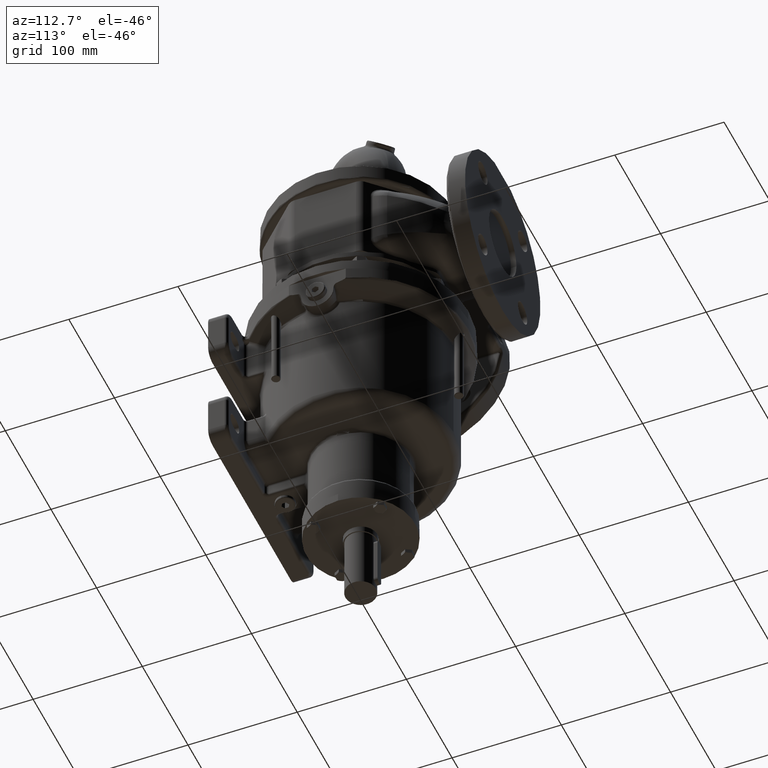
[diagram: clean part render]
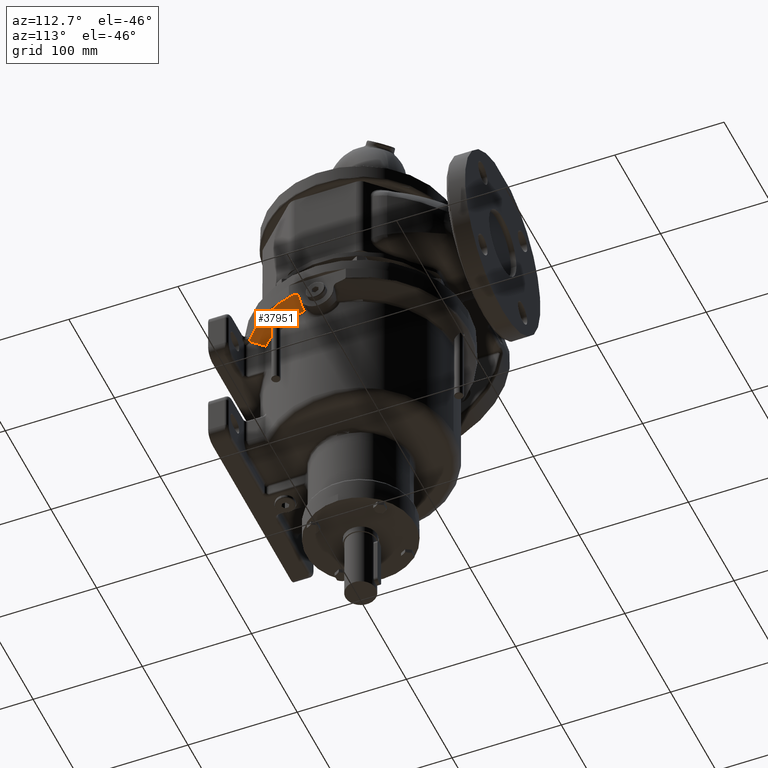
[diagram: same view with one face highlighted and labeled with its STEP entity id]
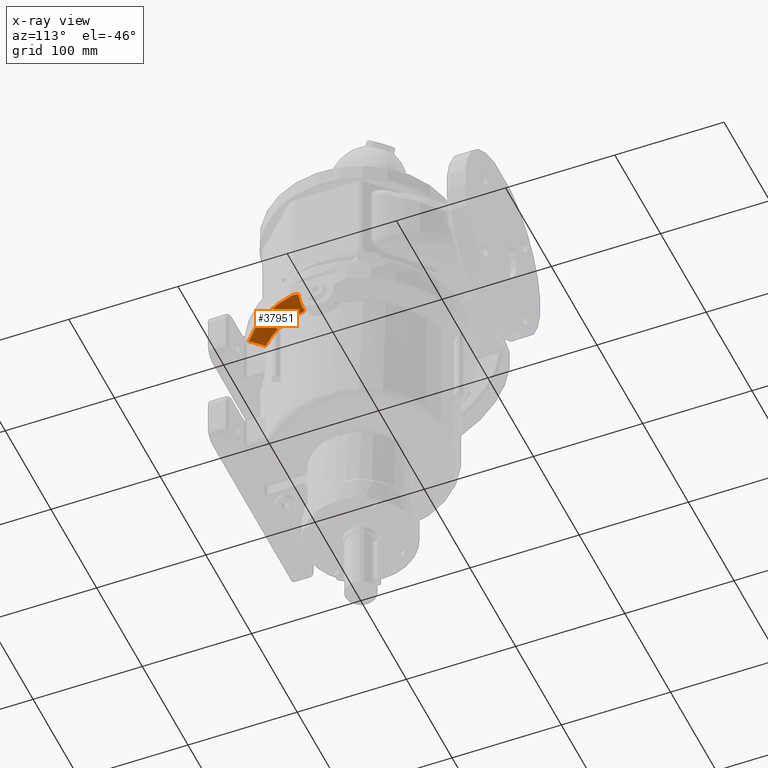
[diagram: x-ray of the same camera — body ghosted, the highlighted face saturated]
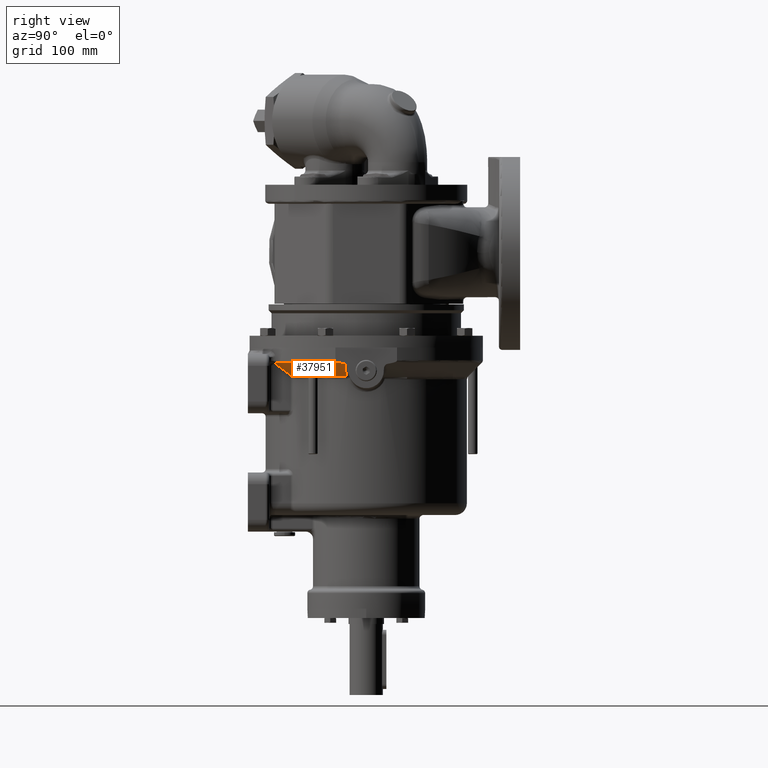
[diagram: same view with one face highlighted and labeled with its STEP entity id]
A machine part, auxiliary view. The second image highlights one B-rep face of the part: STEP entity #37951.
The next image is the same camera in x-ray: the body ghosted, the highlighted face saturated — about 0% of this face is hidden behind the body in this view.
A second angle (right view) of the same face is appended — the face is thin or edge-on in the first view.
In plain terms, the highlighted conical surface has half-angle 45 deg.
Its self-contained STEP definition (entity closure, byte-faithful):
#6788=CARTESIAN_POINT('',(5.959501348112E1,-7.731983286199E1,
-1.287867965644E1));
#8172=CARTESIAN_POINT('',(9.5E1,-2.247047364031E1,-1.287867965644E1));
#8173=CARTESIAN_POINT('',(9.5E1,-2.192824920119E1,-1.300348886742E1));
#8174=CARTESIAN_POINT('',(9.5E1,-2.084549863166E1,-1.324415795726E1));
#8175=CARTESIAN_POINT('',(9.5E1,-1.922680507151E1,-1.357821014075E1));
#8176=CARTESIAN_POINT('',(9.5E1,-1.815060332646E1,-1.378306616379E1));
#8177=CARTESIAN_POINT('',(9.5E1,-1.761329099168E1,-1.388101625738E1));
#8179=CARTESIAN_POINT('',(9.5E1,-1.761329099168E1,-1.388101625738E1));
#8180=CARTESIAN_POINT('',(9.459411508698E1,-1.761172689323E1,
-1.428038514175E1));
#8181=CARTESIAN_POINT('',(9.378947173534E1,-1.760858878139E1,
-1.507195459153E1));
#8182=CARTESIAN_POINT('',(9.260435751420E1,-1.760385593402E1,
-1.623734883452E1));
#8183=CARTESIAN_POINT('',(9.182790578010E1,-1.760068118379E1,
-1.700057114701E1));
#8184=CARTESIAN_POINT('',(9.144316457862E1,-1.759908958940E1,
-1.737867965644E1));
#8186=CARTESIAN_POINT('',(9.144316457862E1,-1.759908958940E1,
-1.737867965644E1));
#8187=CARTESIAN_POINT('',(9.117289481733E1,-1.759797147805E1,
-1.764429015937E1));
#8188=CARTESIAN_POINT('',(9.063682173516E1,-1.758424804286E1,
-1.817321687609E1));
#8189=CARTESIAN_POINT('',(8.984494938008E1,-1.752984568631E1,
-1.896089185466E1));
#8190=CARTESIAN_POINT('',(8.906874605659E1,-1.744252578248E1,
-1.973942162542E1));
#8191=CARTESIAN_POINT('',(8.830949537930E1,-1.732328311154E1,
-2.050742738294E1));
#8192=CARTESIAN_POINT('',(8.757066789307E1,-1.717351784319E1,
-2.126126682925E1));
#8193=CARTESIAN_POINT('',(8.686340059359E1,-1.699735093593E1,
-2.198921280938E1));
#8194=CARTESIAN_POINT('',(8.618987019135E1,-1.679820336204E1,
-2.268843326812E1));
#8195=CARTESIAN_POINT('',(8.554794011002E1,-1.657815641024E1,
-2.336056233383E1));
#8196=CARTESIAN_POINT('',(8.493698040941E1,-1.633953298813E1,
-2.400569182958E1));
#8197=CARTESIAN_POINT('',(8.454886530905E1,-1.616908043344E1,
-2.441894970591E1));
#8198=CARTESIAN_POINT('',(8.435957144636E1,-1.608136534831E1,
-2.462132040922E1));
#8200=CARTESIAN_POINT('',(0.E0,0.E0,-2.462132034356E1));
#8201=DIRECTION('',(0.E0,0.E0,1.E0));
#8202=DIRECTION('',(8.761180740014E-1,-4.820965882559E-1,0.E0));
#8203=AXIS2_PLACEMENT_3D('',#8200,#8201,#8202);
#8205=CARTESIAN_POINT('',(7.523986341839E1,-4.140181846629E1,
-2.462132034356E1));
#8206=CARTESIAN_POINT('',(7.529182902621E1,-4.136278957116E1,
-2.459460803251E1));
#8207=CARTESIAN_POINT('',(7.539827706046E1,-4.128636567658E1,
-2.453806786871E1));
#8208=CARTESIAN_POINT('',(7.556525108097E1,-4.117728236088E1,
-2.444382326924E1));
#8209=CARTESIAN_POINT('',(7.573973362664E1,-4.107410057795E1,
-2.433980607158E1));
#8210=CARTESIAN_POINT('',(7.592177897429E1,-4.097731857663E1,
-2.422574269568E1));
#8211=CARTESIAN_POINT('',(7.611144619394E1,-4.088746139473E1,
-2.410134614049E1));
#8212=CARTESIAN_POINT('',(7.630874025925E1,-4.080511642980E1,
-2.396635100777E1));
#8213=CARTESIAN_POINT('',(7.651361711417E1,-4.073092100981E1,
-2.382051554327E1));
#8214=CARTESIAN_POINT('',(7.672597123036E1,-4.066556173029E1,
-2.366363327807E1));
#8215=CARTESIAN_POINT('',(7.694561735015E1,-4.060977125037E1,
-2.349555100346E1));
#8216=CARTESIAN_POINT('',(7.717228830539E1,-4.056431832610E1,
-2.331617558112E1));
#8217=CARTESIAN_POINT('',(7.740562008073E1,-4.053000052699E1,
-2.312549057680E1));
#8218=CARTESIAN_POINT('',(7.764512883174E1,-4.050763306389E1,
-2.292358168222E1));
#8219=CARTESIAN_POINT('',(7.789021956021E1,-4.049803109208E1,
-2.271063686797E1));
#8220=CARTESIAN_POINT('',(7.814016163151E1,-4.050199422825E1,
-2.248697459262E1));
#8221=CARTESIAN_POINT('',(7.839407848875E1,-4.052028295535E1,
-2.225306292757E1));
#8222=CARTESIAN_POINT('',(7.865096331918E1,-4.055359568648E1,
-2.200951499749E1));
#8223=CARTESIAN_POINT('',(7.890965450353E1,-4.060253990052E1,
-2.175712258088E1));
#8224=CARTESIAN_POINT('',(7.916885601507E1,-4.066760360515E1,
-2.149684940397E1));
#8225=CARTESIAN_POINT('',(7.942714321450E1,-4.074912384542E1,
-2.122983859163E1));
#8226=CARTESIAN_POINT('',(7.968299861506E1,-4.084726576389E1,
-2.095738860950E1));
#8227=CARTESIAN_POINT('',(7.993477381309E1,-4.096196649612E1,
-2.068101106073E1));
#8228=CARTESIAN_POINT('',(8.018089650891E1,-4.109299325777E1,
-2.040221856284E1));
#8229=CARTESIAN_POINT('',(8.041961370638E1,-4.123980673986E1,
-2.012281462616E1));
#8230=CARTESIAN_POINT('',(8.064850007342E1,-4.140105669505E1,
-1.984556091805E1));
#8231=CARTESIAN_POINT('',(8.086553471870E1,-4.157506289819E1,
-1.957300058318E1));
#8232=CARTESIAN_POINT('',(8.106966894953E1,-4.176046763892E1,
-1.930665699772E1));
#8233=CARTESIAN_POINT('',(8.126011952020E1,-4.195590643786E1,
-1.904781466487E1));
#8234=CARTESIAN_POINT('',(8.143625036115E1,-4.215991284422E1,
-1.879767003175E1));
#8235=CARTESIAN_POINT('',(8.159766020793E1,-4.237104105655E1,
-1.855719959588E1));
#8236=CARTESIAN_POINT('',(8.174413878366E1,-4.258787176163E1,
-1.832719814343E1));
#8237=CARTESIAN_POINT('',(8.187564992276E1,-4.280903480632E1,
-1.810828511787E1));
#8238=CARTESIAN_POINT('',(8.199231922080E1,-4.303324373276E1,
-1.790090114212E1));
#8239=CARTESIAN_POINT('',(8.209440910085E1,-4.325931385380E1,
-1.770532285830E1));
#8240=CARTESIAN_POINT('',(8.218228754124E1,-4.348615623662E1,
-1.752169421016E1));
#8241=CARTESIAN_POINT('',(8.225641574278E1,-4.371280975816E1,
-1.735002285126E1));
#8242=CARTESIAN_POINT('',(8.231731717451E1,-4.393842716573E1,
-1.719021408477E1));
#8243=CARTESIAN_POINT('',(8.236555851108E1,-4.416227394726E1,
-1.704208810325E1));
#8244=CARTESIAN_POINT('',(8.240173340293E1,-4.438373849162E1,
-1.690538912581E1));
#8245=CARTESIAN_POINT('',(8.242644191510E1,-4.460230976132E1,
-1.677981349969E1));
#8246=CARTESIAN_POINT('',(8.244027858847E1,-4.481757687577E1,
-1.666501979138E1));
#8247=CARTESIAN_POINT('',(8.244382000650E1,-4.502922230807E1,
-1.656064221815E1));
#8248=CARTESIAN_POINT('',(8.243761493741E1,-4.523700475558E1,
-1.646630674756E1));
#8249=CARTESIAN_POINT('',(8.242217705361E1,-4.544075663471E1,
-1.638163796100E1));
#8250=CARTESIAN_POINT('',(8.239797878696E1,-4.564037040429E1,
-1.630627028596E1));
#8251=CARTESIAN_POINT('',(8.236544817234E1,-4.583578477750E1,
-1.623985677315E1));
#8252=CARTESIAN_POINT('',(8.232496559337E1,-4.602698242128E1,
-1.618207247174E1));
#8253=CARTESIAN_POINT('',(8.227686013146E1,-4.621398463083E1,
-1.613261960476E1));
#8254=CARTESIAN_POINT('',(8.222141462611E1,-4.639682214832E1,
-1.609123694760E1));
#8255=CARTESIAN_POINT('',(8.215886022269E1,-4.657555125094E1,
-1.605769633857E1));
#8256=CARTESIAN_POINT('',(8.208937992188E1,-4.675023545488E1,
-1.603180820181E1));
#8257=CARTESIAN_POINT('',(8.201310474233E1,-4.692094640867E1,
-1.601342406190E1));
#8258=CARTESIAN_POINT('',(8.193014349678E1,-4.708771141332E1,
-1.600243679994E1));
#8259=CARTESIAN_POINT('',(8.187036485851E1,-4.719636843087E1,-1.6E1));
#8260=CARTESIAN_POINT('',(8.183940065763E1,-4.725E1,-1.6E1));
#8262=CARTESIAN_POINT('',(8.183940065763E1,-4.725E1,-1.6E1));
#8263=CARTESIAN_POINT('',(8.180842362518E1,-4.730365379407E1,-1.6E1));
#8264=CARTESIAN_POINT('',(8.174418578718E1,-4.740979536922E1,
-1.600243882138E1));
#8265=CARTESIAN_POINT('',(8.164119764939E1,-4.756508521043E1,
-1.601343510045E1));
#8266=CARTESIAN_POINT('',(8.153144419647E1,-4.771655383296E1,
-1.603183423095E1));
#8267=CARTESIAN_POINT('',(8.141484719547E1,-4.786412077604E1,
-1.605774343129E1));
#8268=CARTESIAN_POINT('',(8.129127900608E1,-4.800770826922E1,
-1.609131131587E1));
#8269=CARTESIAN_POINT('',(8.116059270705E1,-4.814718969633E1,
-1.613272776424E1));
#8270=CARTESIAN_POINT('',(8.102262390401E1,-4.828239264762E1,
-1.618222120174E1));
#8271=CARTESIAN_POINT('',(8.087720367032E1,-4.841308779216E1,
-1.624005348845E1));
#8272=CARTESIAN_POINT('',(8.072414927047E1,-4.853899983543E1,
-1.630652267735E1));
#8273=CARTESIAN_POINT('',(8.056328497715E1,-4.865979043094E1,
-1.638195432744E1));
#8274=CARTESIAN_POINT('',(8.039444838718E1,-4.877505830228E1,
-1.646669661265E1));
#8275=CARTESIAN_POINT('',(8.021749847983E1,-4.888433819474E1,
-1.656111456801E1));
#8276=CARTESIAN_POINT('',(8.003232182597E1,-4.898710164794E1,
-1.666558501017E1));
#8277=CARTESIAN_POINT('',(7.983885226167E1,-4.908275188550E1,
-1.678048308803E1));
#8278=CARTESIAN_POINT('',(7.963707881160E1,-4.917062852559E1,
-1.690617382168E1));
#8279=CARTESIAN_POINT('',(7.942705985452E1,-4.925001035238E1,
-1.704299931121E1));
#8280=CARTESIAN_POINT('',(7.920893735614E1,-4.932012117578E1,
-1.719126426955E1));
#8281=CARTESIAN_POINT('',(7.898294613911E1,-4.938013921893E1,
-1.735122383424E1));
#8282=CARTESIAN_POINT('',(7.874944136974E1,-4.942920490950E1,
-1.752305667889E1));
#8283=CARTESIAN_POINT('',(7.850889551314E1,-4.946644033692E1,
-1.770685769763E1));
#8284=CARTESIAN_POINT('',(7.826191143677E1,-4.949096437147E1,
-1.790261899706E1));
#8285=CARTESIAN_POINT('',(7.800925238820E1,-4.950191276011E1,
-1.811019377223E1));
#8286=CARTESIAN_POINT('',(7.775181556769E1,-4.949846547289E1,
-1.832930364048E1));
#8287=CARTESIAN_POINT('',(7.749065442308E1,-4.947987039120E1,
-1.855950632920E1));
#8288=CARTESIAN_POINT('',(7.722697618625E1,-4.944547385526E1,
-1.880018026456E1));
#8289=CARTESIAN_POINT('',(7.696212081434E1,-4.939474979285E1,
-1.905052516700E1));
#8290=CARTESIAN_POINT('',(7.669753720769E1,-4.932732228041E1,
-1.930956809456E1));
#8291=CARTESIAN_POINT('',(7.643483500310E1,-4.924301649463E1,
-1.957609035736E1));
#8292=CARTESIAN_POINT('',(7.617555296222E1,-4.914182071017E1,
-1.984884069707E1));
#8293=CARTESIAN_POINT('',(7.592139592833E1,-4.902395406790E1,
-2.012629727581E1));
#8294=CARTESIAN_POINT('',(7.567520953346E1,-4.889054777843E1,
-2.040547762485E1));
#8295=CARTESIAN_POINT('',(7.543915431883E1,-4.874299055771E1,
-2.068382583010E1));
#8296=CARTESIAN_POINT('',(7.521429337477E1,-4.858235591752E1,
-2.095986878219E1));
#8297=CARTESIAN_POINT('',(7.500175075826E1,-4.840997524850E1,
-2.123193256934E1));
#8298=CARTESIAN_POINT('',(7.480234109113E1,-4.822719931571E1,
-2.149858396924E1));
#8299=CARTESIAN_POINT('',(7.461669531836E1,-4.803543124250E1,
-2.175850831057E1));
#8300=CARTESIAN_POINT('',(7.444522448014E1,-4.783606064132E1,
-2.201057730339E1));
#8301=CARTESIAN_POINT('',(7.428815389773E1,-4.763044659289E1,
-2.225383132620E1));
#8302=CARTESIAN_POINT('',(7.414553798813E1,-4.741989052352E1,
-2.248748343915E1));
#8303=CARTESIAN_POINT('',(7.401727810842E1,-4.720560837973E1,
-2.271092105643E1));
#8304=CARTESIAN_POINT('',(7.390315620109E1,-4.698873311853E1,
-2.292367772995E1));
#8305=CARTESIAN_POINT('',(7.380284826210E1,-4.677029163783E1,
-2.312543542740E1));
#8306=CARTESIAN_POINT('',(7.371594928162E1,-4.655120069856E1,
-2.331600657116E1));
#8307=CARTESIAN_POINT('',(7.364200072976E1,-4.633228592459E1,
-2.349530131554E1));
#8308=CARTESIAN_POINT('',(7.358049835860E1,-4.611425894664E1,
-2.366333356945E1));
#8309=CARTESIAN_POINT('',(7.353091381748E1,-4.589772966758E1,
-2.382019626567E1));
#8310=CARTESIAN_POINT('',(7.349271103422E1,-4.568322745170E1,
-2.396603621176E1));
#8311=CARTESIAN_POINT('',(7.346535255453E1,-4.547118673945E1,
-2.410105616091E1));
#8312=CARTESIAN_POINT('',(7.344831265260E1,-4.526196200418E1,
-2.422549539267E1));
#8313=CARTESIAN_POINT('',(7.344108459635E1,-4.505584668077E1,
-2.433961322334E1));
#8314=CARTESIAN_POINT('',(7.344318775281E1,-4.485305318024E1,
-2.444369287229E1));
#8315=CARTESIAN_POINT('',(7.345416687628E1,-4.465378586911E1,
-2.453800367775E1));
#8316=CARTESIAN_POINT('',(7.346713488937E1,-4.452329271992E1,
-2.459458697027E1));
#8317=CARTESIAN_POINT('',(7.347495826388E1,-4.445872386445E1,
-2.462132034356E1));
#8319=CARTESIAN_POINT('',(0.E0,0.E0,-2.462132034356E1));
#8320=DIRECTION('',(0.E0,0.E0,1.E0));
#8321=DIRECTION('',(6.875E-1,-7.261843774139E-1,0.E0));
#8322=AXIS2_PLACEMENT_3D('',#8319,#8320,#8321);
#8324=CARTESIAN_POINT('',(5.921021708917E1,-7.731582066189E1,
-1.311629534482E1));
#8325=CARTESIAN_POINT('',(5.920188496150E1,-7.651254368598E1,
-1.375910684653E1));
#8326=CARTESIAN_POINT('',(5.918528899359E1,-7.493497908897E1,
-1.501451019737E1));
#8327=CARTESIAN_POINT('',(5.916071176315E1,-7.265951374361E1,
-1.680502303405E1));
#8328=CARTESIAN_POINT('',(5.913638177231E1,-7.046227666794E1,
-1.851402940248E1));
#8329=CARTESIAN_POINT('',(5.911231649220E1,-6.833939315844E1,
-2.014551718593E1));
#8330=CARTESIAN_POINT('',(5.908848931267E1,-6.628347525619E1,
-2.170607789261E1));
#8331=CARTESIAN_POINT('',(5.906492435497E1,-6.429192873132E1,
-2.319854400579E1));
#8332=CARTESIAN_POINT('',(5.904933945787E1,-6.300014497434E1,
-2.415385806256E1));
#8333=CARTESIAN_POINT('',(5.904159226380E1,-6.236375551944E1,
-2.462132034356E1));
#8335=CARTESIAN_POINT('',(5.959501348112E1,-7.731983286199E1,
-1.287867965644E1));
#8336=CARTESIAN_POINT('',(5.955217380693E1,-7.731938636724E1,
-1.290518568863E1));
#8337=CARTESIAN_POINT('',(5.946655085758E1,-7.731849383842E1,
-1.295812814383E1));
#8338=CARTESIAN_POINT('',(5.933828639225E1,-7.731715644422E1,
-1.303733268130E1));
#8339=CARTESIAN_POINT('',(5.925288819754E1,-7.731626576753E1,
-1.308999752315E1));
#8340=CARTESIAN_POINT('',(5.921021708917E1,-7.731582066189E1,
-1.311629534482E1));
#8342=CARTESIAN_POINT('',(0.E0,0.E0,-1.287867965644E1));
#8343=DIRECTION('',(0.E0,0.E0,-1.E0));
#8344=DIRECTION('',(9.731480752941E-1,-2.301799807791E-1,0.E0));
#8345=AXIS2_PLACEMENT_3D('',#8342,#8343,#8344);
#21294=VERTEX_POINT('',#8205);
#21295=VERTEX_POINT('',#8260);
#21296=VERTEX_POINT('',#8317);
#21327=CARTESIAN_POINT('',(9.144316457861E1,-1.759908958940E1,
-1.737867965645E1));
#21329=VERTEX_POINT('',#21327);
#21567=VERTEX_POINT('',#6788);
#21569=VERTEX_POINT('',#8340);
#21573=VERTEX_POINT('',#8333);
#21578=CARTESIAN_POINT('',(8.435957186633E1,-1.608136554011E1,
-2.462132000354E1));
#21580=VERTEX_POINT('',#21578);
#21651=VERTEX_POINT('',#8172);
#21652=VERTEX_POINT('',#8177);
#37928=CARTESIAN_POINT('',(0.E0,0.E0,-1.875000002297E1));
#37929=DIRECTION('',(0.E0,0.E0,1.E0));
#37930=DIRECTION('',(0.E0,-1.E0,0.E0));
#37931=AXIS2_PLACEMENT_3D('',#37928,#37929,#37930);
#37932=CONICAL_SURFACE('',#37931,9.174999997703E1,4.5E1);
#37933=ORIENTED_EDGE('',*,*,#36483,.T.);
#37935=ORIENTED_EDGE('',*,*,#37934,.T.);
#37937=ORIENTED_EDGE('',*,*,#37936,.T.);
#37938=ORIENTED_EDGE('',*,*,#37918,.F.);
#37940=ORIENTED_EDGE('',*,*,#37939,.T.);
#37942=ORIENTED_EDGE('',*,*,#37941,.T.);
#37943=ORIENTED_EDGE('',*,*,#37912,.F.);
#37945=ORIENTED_EDGE('',*,*,#37944,.F.);
#37947=ORIENTED_EDGE('',*,*,#37946,.F.);
#37948=ORIENTED_EDGE('',*,*,#36452,.F.);
#37949=EDGE_LOOP('',(#37933,#37935,#37937,#37938,#37940,#37942,#37943,#37945,
#37947,#37948));
#37950=FACE_OUTER_BOUND('',#37949,.F.);
#37951=ADVANCED_FACE('',(#37950),#37932,.T.);
#8178=B_SPLINE_CURVE_WITH_KNOTS('',3,(#8172,#8173,#8174,#8175,#8176,#8177),
.UNSPECIFIED.,.F.,.F.,(4,1,1,4),(0.E0,3.333333333333E-1,6.666666666667E-1,1.E0),
.UNSPECIFIED.);
#8185=B_SPLINE_CURVE_WITH_KNOTS('',3,(#8179,#8180,#8181,#8182,#8183,#8184),
.UNSPECIFIED.,.F.,.F.,(4,1,1,4),(0.E0,3.333333333333E-1,6.666666666667E-1,1.E0),
.UNSPECIFIED.);
#8199=B_SPLINE_CURVE_WITH_KNOTS('',3,(#8186,#8187,#8188,#8189,#8190,#8191,#8192,
#8193,#8194,#8195,#8196,#8197,#8198),.UNSPECIFIED.,.F.,.F.,(4,1,1,1,1,1,1,1,1,1,
4),(0.E0,1.E-1,2.E-1,3.E-1,4.E-1,5.E-1,6.E-1,7.E-1,8.E-1,9.E-1,1.E0),
.UNSPECIFIED.);
#8204=CIRCLE('',#8203,8.587867965644E1);
#8261=B_SPLINE_CURVE_WITH_KNOTS('',3,(#8205,#8206,#8207,#8208,#8209,#8210,#8211,
#8212,#8213,#8214,#8215,#8216,#8217,#8218,#8219,#8220,#8221,#8222,#8223,#8224,
#8225,#8226,#8227,#8228,#8229,#8230,#8231,#8232,#8233,#8234,#8235,#8236,#8237,
#8238,#8239,#8240,#8241,#8242,#8243,#8244,#8245,#8246,#8247,#8248,#8249,#8250,
#8251,#8252,#8253,#8254,#8255,#8256,#8257,#8258,#8259,#8260),.UNSPECIFIED.,.F.,
.F.,(4,1,1,1,1,1,1,1,1,1,1,1,1,1,1,1,1,1,1,1,1,1,1,1,1,1,1,1,1,1,1,1,1,1,1,1,1,
1,1,1,1,1,1,1,1,1,1,1,1,1,1,1,1,4),(0.E0,1.886792452830E-2,3.773584905660E-2,
5.660377358491E-2,7.547169811321E-2,9.433962264151E-2,1.132075471698E-1,
1.320754716981E-1,1.509433962264E-1,1.698113207547E-1,1.886792452830E-1,
2.075471698113E-1,2.264150943396E-1,2.452830188679E-1,2.641509433962E-1,
2.830188679245E-1,3.018867924528E-1,3.207547169811E-1,3.396226415094E-1,
3.584905660377E-1,3.773584905660E-1,3.962264150943E-1,4.150943396226E-1,
4.339622641509E-1,4.528301886792E-1,4.716981132075E-1,4.905660377358E-1,
5.094339622642E-1,5.283018867925E-1,5.471698113208E-1,5.660377358491E-1,
5.849056603774E-1,6.037735849057E-1,6.226415094340E-1,6.415094339623E-1,
6.603773584906E-1,6.792452830189E-1,6.981132075472E-1,7.169811320755E-1,
7.358490566038E-1,7.547169811321E-1,7.735849056604E-1,7.924528301887E-1,
8.113207547170E-1,8.301886792453E-1,8.490566037736E-1,8.679245283019E-1,
8.867924528302E-1,9.056603773585E-1,9.245283018868E-1,9.433962264151E-1,
9.622641509434E-1,9.811320754717E-1,1.E0),.UNSPECIFIED.);
#8318=B_SPLINE_CURVE_WITH_KNOTS('',3,(#8262,#8263,#8264,#8265,#8266,#8267,#8268,
#8269,#8270,#8271,#8272,#8273,#8274,#8275,#8276,#8277,#8278,#8279,#8280,#8281,
#8282,#8283,#8284,#8285,#8286,#8287,#8288,#8289,#8290,#8291,#8292,#8293,#8294,
#8295,#8296,#8297,#8298,#8299,#8300,#8301,#8302,#8303,#8304,#8305,#8306,#8307,
#8308,#8309,#8310,#8311,#8312,#8313,#8314,#8315,#8316,#8317),.UNSPECIFIED.,.F.,
.F.,(4,1,1,1,1,1,1,1,1,1,1,1,1,1,1,1,1,1,1,1,1,1,1,1,1,1,1,1,1,1,1,1,1,1,1,1,1,
1,1,1,1,1,1,1,1,1,1,1,1,1,1,1,1,4),(0.E0,1.886792452830E-2,3.773584905660E-2,
5.660377358491E-2,7.547169811321E-2,9.433962264151E-2,1.132075471698E-1,
1.320754716981E-1,1.509433962264E-1,1.698113207547E-1,1.886792452830E-1,
2.075471698113E-1,2.264150943396E-1,2.452830188679E-1,2.641509433962E-1,
2.830188679245E-1,3.018867924528E-1,3.207547169811E-1,3.396226415094E-1,
3.584905660377E-1,3.773584905660E-1,3.962264150943E-1,4.150943396226E-1,
4.339622641509E-1,4.528301886792E-1,4.716981132075E-1,4.905660377358E-1,
5.094339622642E-1,5.283018867925E-1,5.471698113208E-1,5.660377358491E-1,
5.849056603774E-1,6.037735849057E-1,6.226415094340E-1,6.415094339623E-1,
6.603773584906E-1,6.792452830189E-1,6.981132075472E-1,7.169811320755E-1,
7.358490566038E-1,7.547169811321E-1,7.735849056604E-1,7.924528301887E-1,
8.113207547170E-1,8.301886792453E-1,8.490566037736E-1,8.679245283019E-1,
8.867924528302E-1,9.056603773585E-1,9.245283018868E-1,9.433962264151E-1,
9.622641509434E-1,9.811320754717E-1,1.E0),.UNSPECIFIED.);
#8323=CIRCLE('',#8322,8.587867965644E1);
#8334=B_SPLINE_CURVE_WITH_KNOTS('',3,(#8324,#8325,#8326,#8327,#8328,#8329,#8330,
#8331,#8332,#8333),.UNSPECIFIED.,.F.,.F.,(4,1,1,1,1,1,1,4),(0.E0,
1.428571428571E-1,2.857142857143E-1,4.285714285714E-1,5.714285714286E-1,
7.142857142857E-1,8.571428571429E-1,1.E0),.UNSPECIFIED.);
#8341=B_SPLINE_CURVE_WITH_KNOTS('',3,(#8335,#8336,#8337,#8338,#8339,#8340),
.UNSPECIFIED.,.F.,.F.,(4,1,1,4),(0.E0,3.333333333333E-1,6.666666666667E-1,1.E0),
.UNSPECIFIED.);
#8346=CIRCLE('',#8345,9.762132034356E1);
#36452=EDGE_CURVE('',#21651,#21567,#8346,.T.);
#36483=EDGE_CURVE('',#21651,#21652,#8178,.T.);
#37912=EDGE_CURVE('',#21573,#21296,#8323,.T.);
#37918=EDGE_CURVE('',#21294,#21580,#8204,.T.);
#37934=EDGE_CURVE('',#21652,#21329,#8185,.T.);
#37936=EDGE_CURVE('',#21329,#21580,#8199,.T.);
#37939=EDGE_CURVE('',#21294,#21295,#8261,.T.);
#37941=EDGE_CURVE('',#21295,#21296,#8318,.T.);
#37944=EDGE_CURVE('',#21569,#21573,#8334,.T.);
#37946=EDGE_CURVE('',#21567,#21569,#8341,.T.);